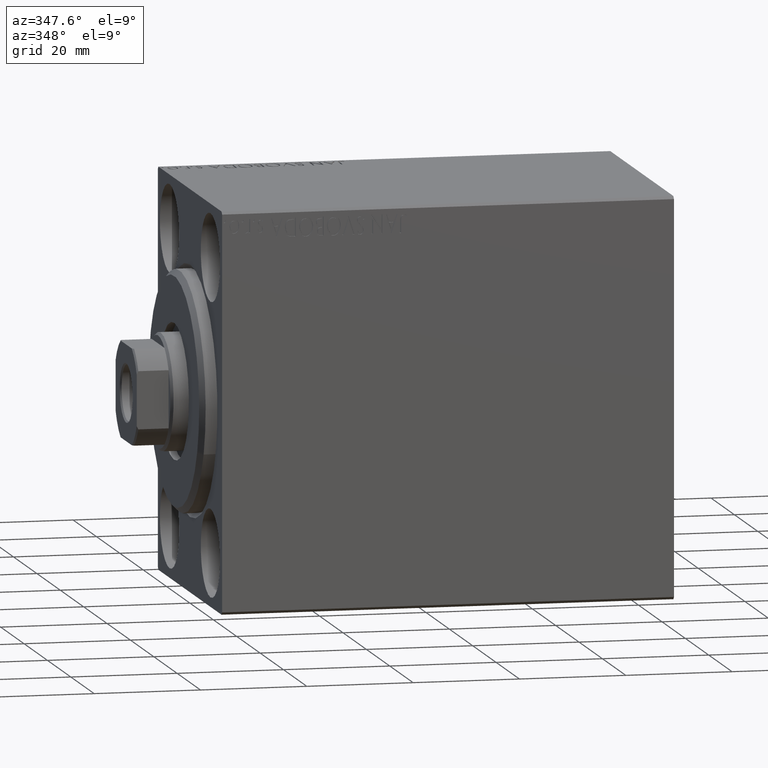
[diagram: clean part render]
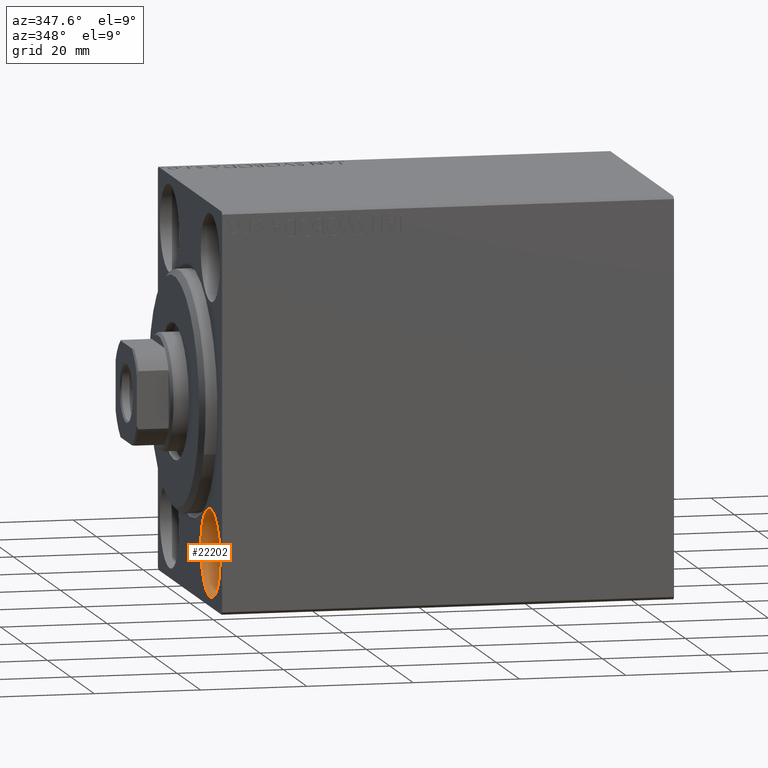
[diagram: same view with one face highlighted and labeled with its STEP entity id]
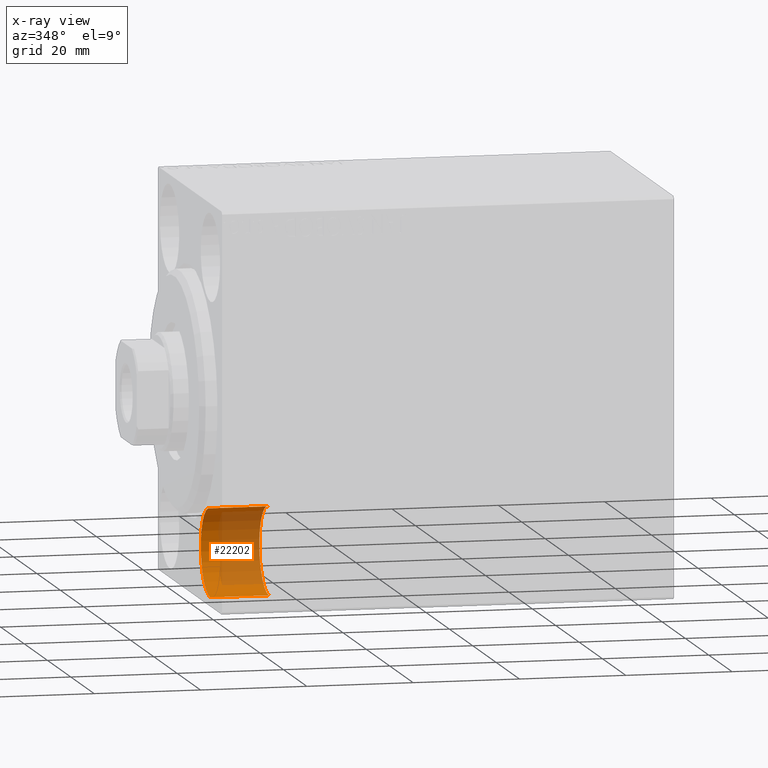
[diagram: x-ray of the same camera — body ghosted, the highlighted face saturated]
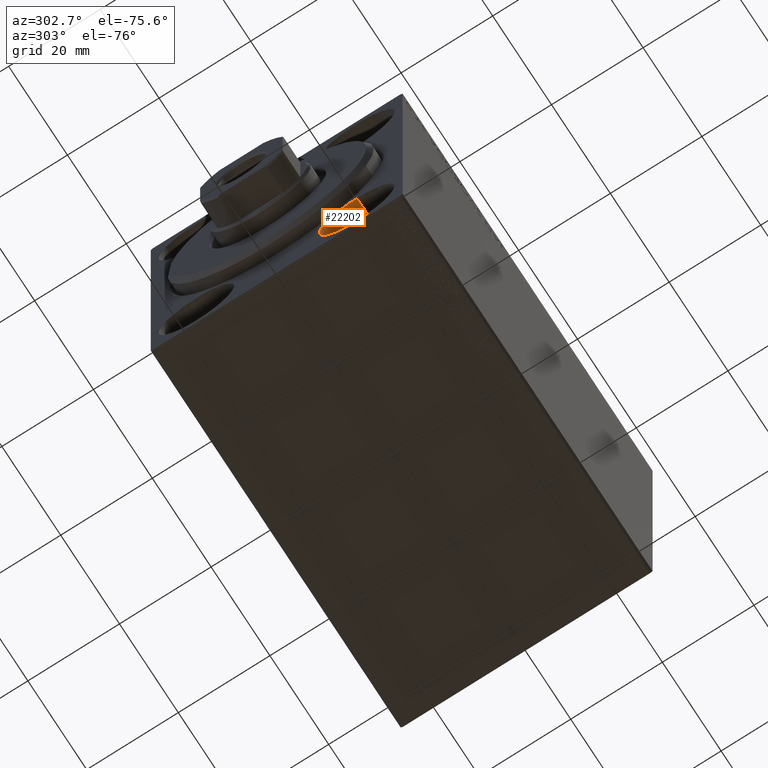
[diagram: same view with one face highlighted and labeled with its STEP entity id]
A machine part, auxiliary view. The second image highlights one B-rep face of the part: STEP entity #22202.
The next image is the same camera in x-ray: the body ghosted, the highlighted face saturated — about 57% of this face is hidden behind the body in this view.
A second angle (auxiliary view) of the same face is appended — the face is thin or edge-on in the first view.
In plain terms, the highlighted cylindrical surface (partial cylindrical patch) has radius 8.25 mm, axis along (-1, -0, -0).
Its self-contained STEP definition (entity closure, byte-faithful):
#350 = DIRECTION ( 'NONE',  ( 0.000000000000000000, 0.000000000000000000, 1.000000000000000000 ) ) ;
#1372 = CARTESIAN_POINT ( 'NONE',  ( 0.000000000000000000, -17.50000000000000355, -19.25000000000000355 ) ) ;
#2451 = VERTEX_POINT ( 'NONE', #38783 ) ;
#3713 = DIRECTION ( 'NONE',  ( -1.000000000000000000, 0.000000000000000000, 0.000000000000000000 ) ) ;
#4062 = VERTEX_POINT ( 'NONE', #15919 ) ;
#4938 = EDGE_LOOP ( 'NONE', ( #42832, #31301, #37577, #32540 ) ) ;
#5166 = EDGE_CURVE ( 'NONE', #37595, #2451, #13384, .T. ) ;
#5359 = DIRECTION ( 'NONE',  ( -1.000000000000000000, -0.000000000000000000, -0.000000000000000000 ) ) ;
#6550 = LINE ( 'NONE', #23714, #13028 ) ;
#6749 = FACE_OUTER_BOUND ( 'NONE', #4938, .T. ) ;
#7728 = AXIS2_PLACEMENT_3D ( 'NONE', #27442, #30524, #350 ) ;
#7900 = EDGE_CURVE ( 'NONE', #4062, #30077, #21405, .T. ) ;
#8654 = CARTESIAN_POINT ( 'NONE',  ( 11.00000000000000000, -17.50000000000000355, -19.25000000000000355 ) ) ;
#10238 = AXIS2_PLACEMENT_3D ( 'NONE', #20211, #3713, #10302 ) ;
#10302 = DIRECTION ( 'NONE',  ( 0.000000000000000000, 0.000000000000000000, 1.000000000000000000 ) ) ;
#11822 = EDGE_CURVE ( 'NONE', #30077, #2451, #6550, .T. ) ;
#13028 = VECTOR ( 'NONE', #40037, 1000.000000000000000 ) ;
#13384 = CIRCLE ( 'NONE', #27449, 8.250000000000000000 ) ;
#15919 = CARTESIAN_POINT ( 'NONE',  ( 11.00000000000000000, -17.50000000000000355, -19.25000000000000355 ) ) ;
#16873 = CYLINDRICAL_SURFACE ( 'NONE', #7728, 8.250000000000000000 ) ;
#17830 = CARTESIAN_POINT ( 'NONE',  ( 11.00000000000000000, -17.50000000000000355, -35.75000000000000711 ) ) ;
#20211 = CARTESIAN_POINT ( 'NONE',  ( 11.00000000000000000, -17.50000000000000355, -27.50000000000000355 ) ) ;
#21405 = CIRCLE ( 'NONE', #10238, 8.250000000000000000 ) ;
#22050 = DIRECTION ( 'NONE',  ( 0.000000000000000000, 0.000000000000000000, 1.000000000000000000 ) ) ;
#22202 = ADVANCED_FACE ( 'NONE', ( #6749 ), #16873, .F. ) ;
#23714 = CARTESIAN_POINT ( 'NONE',  ( 11.00000000000000000, -17.50000000000000355, -35.75000000000000711 ) ) ;
#25987 = EDGE_CURVE ( 'NONE', #4062, #37595, #35327, .T. ) ;
#26225 = DIRECTION ( 'NONE',  ( -1.000000000000000000, 0.000000000000000000, 0.000000000000000000 ) ) ;
#27442 = CARTESIAN_POINT ( 'NONE',  ( 11.00000000000000000, -17.50000000000000355, -27.50000000000000355 ) ) ;
#27449 = AXIS2_PLACEMENT_3D ( 'NONE', #35725, #26225, #22050 ) ;
#30077 = VERTEX_POINT ( 'NONE', #17830 ) ;
#30524 = DIRECTION ( 'NONE',  ( -1.000000000000000000, -0.000000000000000000, -0.000000000000000000 ) ) ;
#31301 = ORIENTED_EDGE ( 'NONE', *, *, #7900, .F. ) ;
#32540 = ORIENTED_EDGE ( 'NONE', *, *, #5166, .T. ) ;
#35327 = LINE ( 'NONE', #8654, #42870 ) ;
#35725 = CARTESIAN_POINT ( 'NONE',  ( 0.000000000000000000, -17.50000000000000355, -27.50000000000000355 ) ) ;
#37577 = ORIENTED_EDGE ( 'NONE', *, *, #25987, .T. ) ;
#37595 = VERTEX_POINT ( 'NONE', #1372 ) ;
#38783 = CARTESIAN_POINT ( 'NONE',  ( 0.000000000000000000, -17.50000000000000355, -35.75000000000000711 ) ) ;
#40037 = DIRECTION ( 'NONE',  ( -1.000000000000000000, -0.000000000000000000, -0.000000000000000000 ) ) ;
#42832 = ORIENTED_EDGE ( 'NONE', *, *, #11822, .F. ) ;
#42870 = VECTOR ( 'NONE', #5359, 1000.000000000000000 ) ;